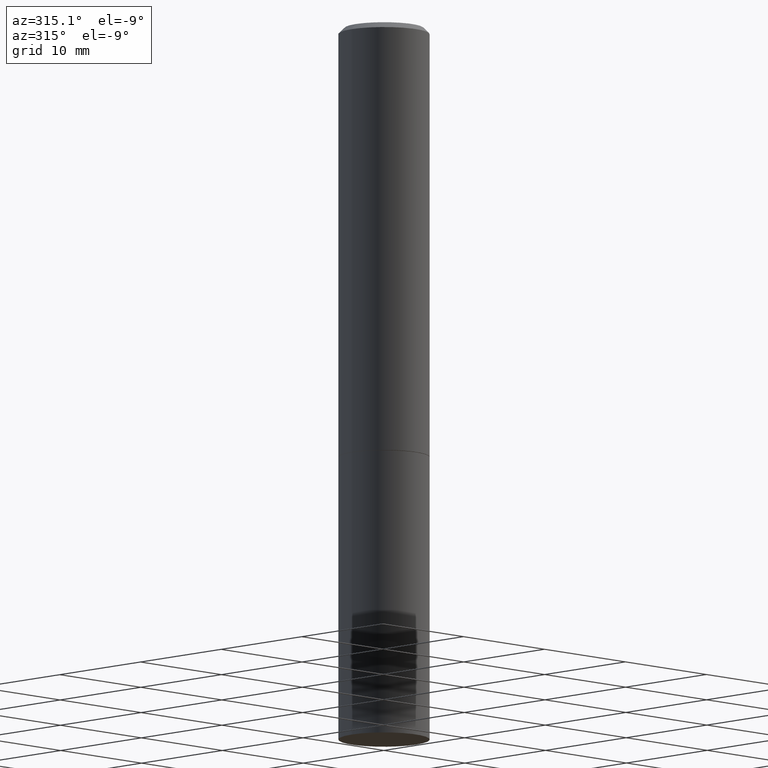
[diagram: clean part render]
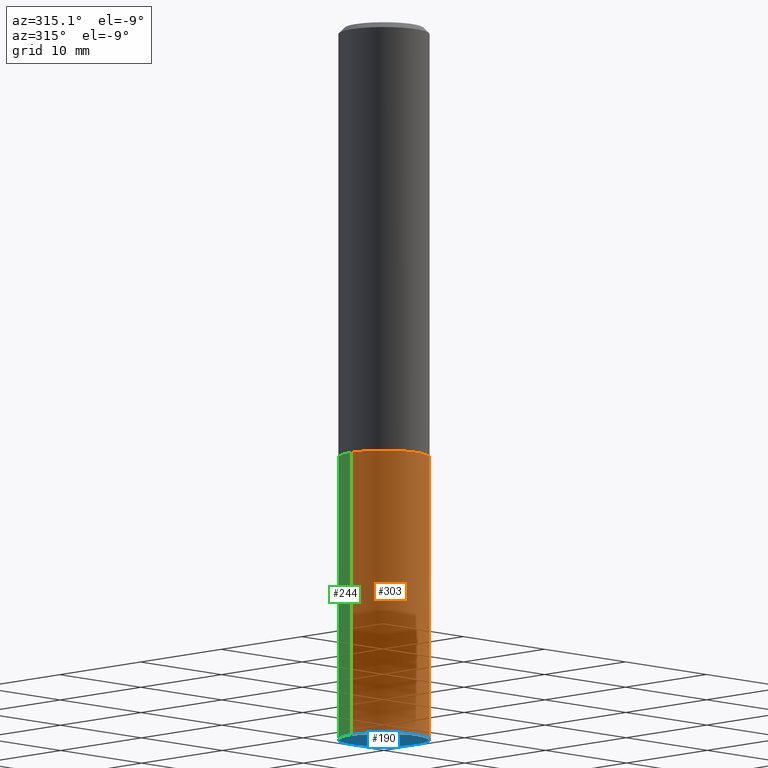
[diagram: same view with three faces highlighted in distinct colors, each labeled with its STEP entity id]
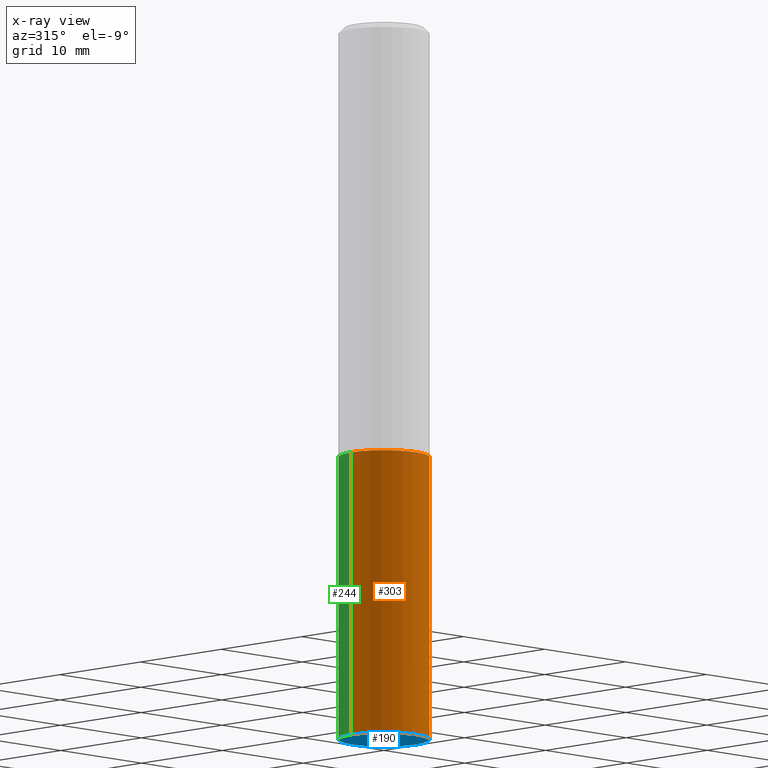
[diagram: x-ray of the same camera — body ghosted, the three highlighted faces saturated]
A machine part, auxiliary view with three faces highlighted in distinct colors.
The next image is the same camera in x-ray (body ghosted, the three faces saturated) — at least one of them is partly hidden behind the body in this view.
Their STEP definitions:

[orange] entity #303 — the highlighted cylindrical surface (partial cylindrical patch) has radius 4.0005 mm, axis along (-0, 0, 1).
#4 = LINE ( 'NONE', #216, #126 ) ;
#5 = CIRCLE ( 'NONE', #95, 0.1575000000000000011 ) ;
#12 = AXIS2_PLACEMENT_3D ( 'NONE', #33, #314, #197 ) ;
#18 = DIRECTION ( 'NONE',  ( -2.445468806185136877E-29, 3.491481338843145188E-15, 1.000000000000000000 ) ) ;
#33 = CARTESIAN_POINT ( 'NONE',  ( 3.658421334052965286E-29, -5.223256082909346937E-15, -1.496000000000000441 ) ) ;
#51 = EDGE_CURVE ( 'NONE', #83, #166, #77, .T. ) ;
#77 = LINE ( 'NONE', #241, #130 ) ;
#80 = EDGE_CURVE ( 'NONE', #83, #337, #5, .T. ) ;
#83 = VERTEX_POINT ( 'NONE', #326 ) ;
#92 = DIRECTION ( 'NONE',  ( -2.445468806185136597E-29, 3.491481338843145583E-15, 1.000000000000000000 ) ) ;
#95 = AXIS2_PLACEMENT_3D ( 'NONE', #154, #92, #358 ) ;
#100 = AXIS2_PLACEMENT_3D ( 'NONE', #280, #194, #309 ) ;
#107 = DIRECTION ( 'NONE',  ( -2.445468806185136877E-29, 3.491481338843145188E-15, 1.000000000000000000 ) ) ;
#114 = CARTESIAN_POINT ( 'NONE',  ( 0.1575000000000000011, -6.323072704644934417E-15, -1.496000000000000441 ) ) ;
#117 = ORIENTED_EDGE ( 'NONE', *, *, #51, .F. ) ;
#126 = VECTOR ( 'NONE', #107, 39.37007874015748143 ) ;
#130 = VECTOR ( 'NONE', #18, 39.37007874015748143 ) ;
#135 = ORIENTED_EDGE ( 'NONE', *, *, #195, .F. ) ;
#137 = ORIENTED_EDGE ( 'NONE', *, *, #80, .T. ) ;
#144 = CYLINDRICAL_SURFACE ( 'NONE', #100, 0.1575000000000000011 ) ;
#149 = ORIENTED_EDGE ( 'NONE', *, *, #264, .T. ) ;
#154 = CARTESIAN_POINT ( 'NONE',  ( 6.065496279980994755E-29, -8.659921164732655335E-15, -2.480300000000000171 ) ) ;
#164 = CIRCLE ( 'NONE', #12, 0.1575000000000000011 ) ;
#166 = VERTEX_POINT ( 'NONE', #209 ) ;
#194 = DIRECTION ( 'NONE',  ( -2.445468806185136597E-29, 3.491481338843145583E-15, 1.000000000000000000 ) ) ;
#195 = EDGE_CURVE ( 'NONE', #166, #319, #164, .T. ) ;
#197 = DIRECTION ( 'NONE',  ( 1.000000000000000000, -6.982962677686268288E-15, 0.000000000000000000 ) ) ;
#209 = CARTESIAN_POINT ( 'NONE',  ( -0.1575000000000000011, -5.822483814998842744E-15, -1.496000000000000441 ) ) ;
#216 = CARTESIAN_POINT ( 'NONE',  ( 0.1575000000000000011, -1.099816621735586889E-15, 7.679978421878598033E-30 ) ) ;
#226 = CARTESIAN_POINT ( 'NONE',  ( 0.1575000000000000011, -9.759737786468242027E-15, -2.480300000000000171 ) ) ;
#239 = EDGE_LOOP ( 'NONE', ( #117, #137, #149, #135 ) ) ;
#241 = CARTESIAN_POINT ( 'NONE',  ( -0.1575000000000000011, 1.119104808822157801E-15, -7.747322767151475583E-30 ) ) ;
#255 = FACE_OUTER_BOUND ( 'NONE', #239, .T. ) ;
#264 = EDGE_CURVE ( 'NONE', #337, #319, #4, .T. ) ;
#280 = CARTESIAN_POINT ( 'NONE',  ( 0.000000000000000000, 0.000000000000000000, 0.000000000000000000 ) ) ;
#303 = ADVANCED_FACE ( 'NONE', ( #255 ), #144, .T. ) ;
#309 = DIRECTION ( 'NONE',  ( 1.000000000000000000, -6.982962677686265922E-15, 4.876176775795935232E-29 ) ) ;
#314 = DIRECTION ( 'NONE',  ( -2.445468806185136597E-29, 3.491481338843145583E-15, 1.000000000000000000 ) ) ;
#319 = VERTEX_POINT ( 'NONE', #114 ) ;
#326 = CARTESIAN_POINT ( 'NONE',  ( -0.1575000000000000011, -5.822483814998842744E-15, -2.480300000000000171 ) ) ;
#337 = VERTEX_POINT ( 'NONE', #226 ) ;
#358 = DIRECTION ( 'NONE',  ( 1.000000000000000000, -6.982962677686261977E-15, 0.000000000000000000 ) ) ;

[blue] entity #190 — the highlighted planar face has unit normal (0, -0, -1).
#5 = CIRCLE ( 'NONE', #95, 0.1575000000000000011 ) ;
#36 = CARTESIAN_POINT ( 'NONE',  ( 1.099816621735647434E-15, 0.1574999999999913136, -2.480300000000001059 ) ) ;
#45 = ORIENTED_EDGE ( 'NONE', *, *, #80, .F. ) ;
#62 = ORIENTED_EDGE ( 'NONE', *, *, #129, .F. ) ;
#79 = FACE_OUTER_BOUND ( 'NONE', #85, .T. ) ;
#80 = EDGE_CURVE ( 'NONE', #83, #337, #5, .T. ) ;
#83 = VERTEX_POINT ( 'NONE', #326 ) ;
#85 = EDGE_LOOP ( 'NONE', ( #62, #45 ) ) ;
#92 = DIRECTION ( 'NONE',  ( -2.445468806185136597E-29, 3.491481338843145583E-15, 1.000000000000000000 ) ) ;
#95 = AXIS2_PLACEMENT_3D ( 'NONE', #154, #92, #358 ) ;
#129 = EDGE_CURVE ( 'NONE', #337, #83, #313, .T. ) ;
#154 = CARTESIAN_POINT ( 'NONE',  ( 6.065496279980994755E-29, -8.659921164732655335E-15, -2.480300000000000171 ) ) ;
#161 = DIRECTION ( 'NONE',  ( -2.445468806185136597E-29, 3.491481338843145583E-15, 1.000000000000000000 ) ) ;
#180 = AXIS2_PLACEMENT_3D ( 'NONE', #274, #161, #189 ) ;
#189 = DIRECTION ( 'NONE',  ( 1.000000000000000000, -6.982962677686261977E-15, 0.000000000000000000 ) ) ;
#190 = ADVANCED_FACE ( 'NONE', ( #79 ), #275, .T. ) ;
#226 = CARTESIAN_POINT ( 'NONE',  ( 0.1575000000000000011, -9.759737786468242027E-15, -2.480300000000000171 ) ) ;
#252 = DIRECTION ( 'NONE',  ( -1.000000000000000000, 6.982962677686265922E-15, -4.876176775795935793E-29 ) ) ;
#274 = CARTESIAN_POINT ( 'NONE',  ( 6.065496279980994755E-29, -8.659921164732655335E-15, -2.480300000000000171 ) ) ;
#275 = PLANE ( 'NONE',  #287 ) ;
#282 = DIRECTION ( 'NONE',  ( 2.438088387897960049E-29, -3.491481338843145188E-15, -1.000000000000000000 ) ) ;
#287 = AXIS2_PLACEMENT_3D ( 'NONE', #36, #282, #252 ) ;
#313 = CIRCLE ( 'NONE', #180, 0.1575000000000000011 ) ;
#326 = CARTESIAN_POINT ( 'NONE',  ( -0.1575000000000000011, -5.822483814998842744E-15, -2.480300000000000171 ) ) ;
#337 = VERTEX_POINT ( 'NONE', #226 ) ;
#358 = DIRECTION ( 'NONE',  ( 1.000000000000000000, -6.982962677686261977E-15, 0.000000000000000000 ) ) ;

[green] entity #244 — the highlighted cylindrical surface (partial cylindrical patch) has radius 4.0005 mm, axis along (-0, 0, 1).
#4 = LINE ( 'NONE', #216, #126 ) ;
#18 = DIRECTION ( 'NONE',  ( -2.445468806185136877E-29, 3.491481338843145188E-15, 1.000000000000000000 ) ) ;
#30 = AXIS2_PLACEMENT_3D ( 'NONE', #74, #184, #49 ) ;
#49 = DIRECTION ( 'NONE',  ( 1.000000000000000000, -6.982962677686268288E-15, 0.000000000000000000 ) ) ;
#51 = EDGE_CURVE ( 'NONE', #83, #166, #77, .T. ) ;
#74 = CARTESIAN_POINT ( 'NONE',  ( 3.658421334052965286E-29, -5.223256082909346937E-15, -1.496000000000000441 ) ) ;
#77 = LINE ( 'NONE', #241, #130 ) ;
#83 = VERTEX_POINT ( 'NONE', #326 ) ;
#94 = EDGE_CURVE ( 'NONE', #319, #166, #187, .T. ) ;
#101 = ORIENTED_EDGE ( 'NONE', *, *, #129, .T. ) ;
#102 = CYLINDRICAL_SURFACE ( 'NONE', #338, 0.1575000000000000011 ) ;
#107 = DIRECTION ( 'NONE',  ( -2.445468806185136877E-29, 3.491481338843145188E-15, 1.000000000000000000 ) ) ;
#114 = CARTESIAN_POINT ( 'NONE',  ( 0.1575000000000000011, -6.323072704644934417E-15, -1.496000000000000441 ) ) ;
#115 = ORIENTED_EDGE ( 'NONE', *, *, #51, .T. ) ;
#126 = VECTOR ( 'NONE', #107, 39.37007874015748143 ) ;
#129 = EDGE_CURVE ( 'NONE', #337, #83, #313, .T. ) ;
#130 = VECTOR ( 'NONE', #18, 39.37007874015748143 ) ;
#161 = DIRECTION ( 'NONE',  ( -2.445468806185136597E-29, 3.491481338843145583E-15, 1.000000000000000000 ) ) ;
#166 = VERTEX_POINT ( 'NONE', #209 ) ;
#176 = DIRECTION ( 'NONE',  ( -2.445468806185136597E-29, 3.491481338843145583E-15, 1.000000000000000000 ) ) ;
#180 = AXIS2_PLACEMENT_3D ( 'NONE', #274, #161, #189 ) ;
#184 = DIRECTION ( 'NONE',  ( -2.445468806185136597E-29, 3.491481338843145583E-15, 1.000000000000000000 ) ) ;
#187 = CIRCLE ( 'NONE', #30, 0.1575000000000000011 ) ;
#189 = DIRECTION ( 'NONE',  ( 1.000000000000000000, -6.982962677686261977E-15, 0.000000000000000000 ) ) ;
#196 = ORIENTED_EDGE ( 'NONE', *, *, #264, .F. ) ;
#209 = CARTESIAN_POINT ( 'NONE',  ( -0.1575000000000000011, -5.822483814998842744E-15, -1.496000000000000441 ) ) ;
#216 = CARTESIAN_POINT ( 'NONE',  ( 0.1575000000000000011, -1.099816621735586889E-15, 7.679978421878598033E-30 ) ) ;
#226 = CARTESIAN_POINT ( 'NONE',  ( 0.1575000000000000011, -9.759737786468242027E-15, -2.480300000000000171 ) ) ;
#241 = CARTESIAN_POINT ( 'NONE',  ( -0.1575000000000000011, 1.119104808822157801E-15, -7.747322767151475583E-30 ) ) ;
#244 = ADVANCED_FACE ( 'NONE', ( #257 ), #102, .T. ) ;
#257 = FACE_OUTER_BOUND ( 'NONE', #307, .T. ) ;
#264 = EDGE_CURVE ( 'NONE', #337, #319, #4, .T. ) ;
#274 = CARTESIAN_POINT ( 'NONE',  ( 6.065496279980994755E-29, -8.659921164732655335E-15, -2.480300000000000171 ) ) ;
#279 = ORIENTED_EDGE ( 'NONE', *, *, #94, .F. ) ;
#283 = CARTESIAN_POINT ( 'NONE',  ( 0.000000000000000000, 0.000000000000000000, 0.000000000000000000 ) ) ;
#307 = EDGE_LOOP ( 'NONE', ( #101, #115, #279, #196 ) ) ;
#311 = DIRECTION ( 'NONE',  ( 1.000000000000000000, -6.982962677686265922E-15, 4.876176775795935232E-29 ) ) ;
#313 = CIRCLE ( 'NONE', #180, 0.1575000000000000011 ) ;
#319 = VERTEX_POINT ( 'NONE', #114 ) ;
#326 = CARTESIAN_POINT ( 'NONE',  ( -0.1575000000000000011, -5.822483814998842744E-15, -2.480300000000000171 ) ) ;
#337 = VERTEX_POINT ( 'NONE', #226 ) ;
#338 = AXIS2_PLACEMENT_3D ( 'NONE', #283, #176, #311 ) ;